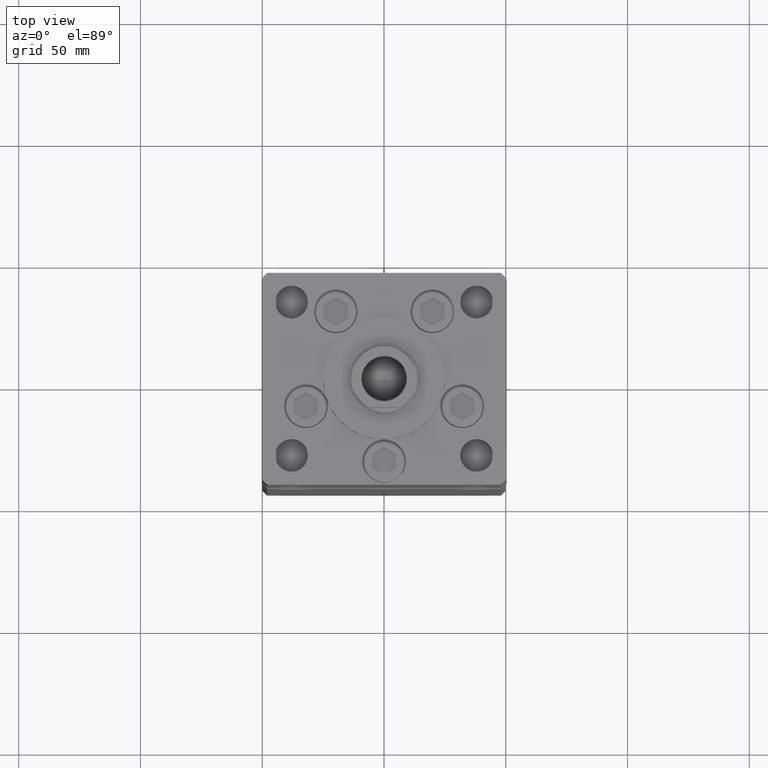
[diagram: clean part render]
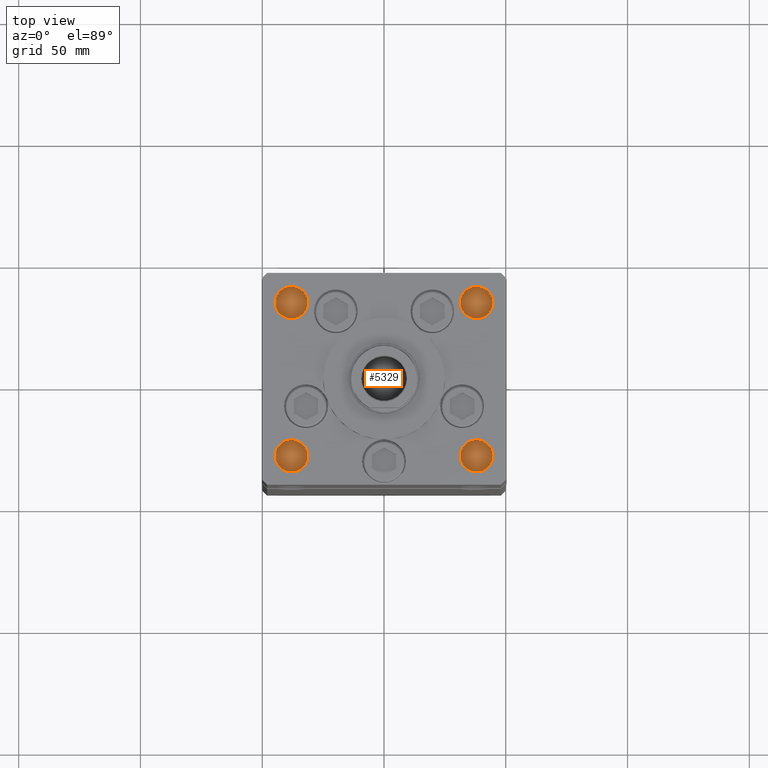
[diagram: same view with one face highlighted and labeled with its STEP entity id]
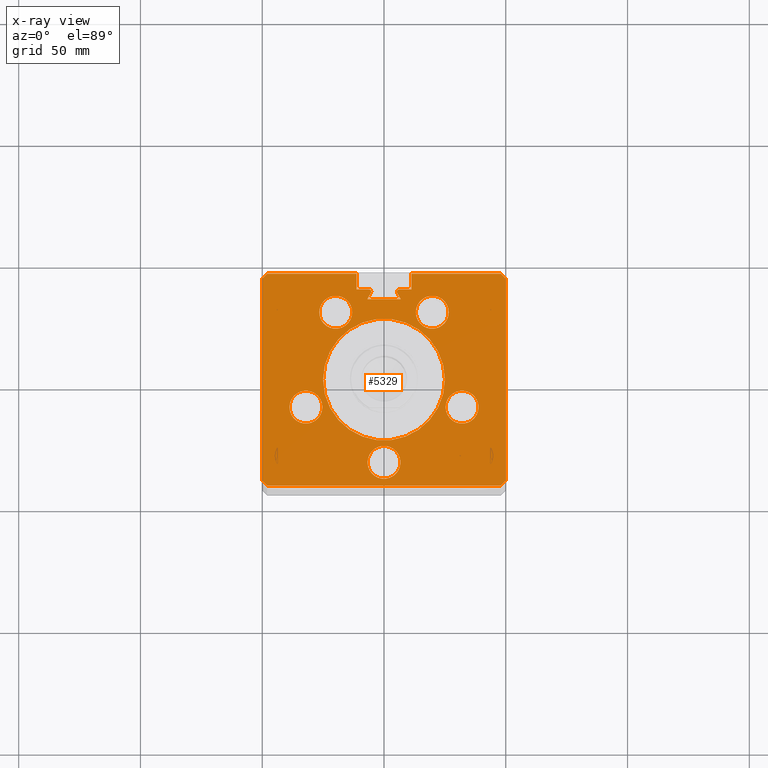
[diagram: x-ray of the same camera — body ghosted, the highlighted face saturated]
A machine part, top view. The second image highlights one B-rep face of the part: STEP entity #5329.
The next image is the same camera in x-ray: the body ghosted, the highlighted face saturated — about 0% of this face is hidden behind the body in this view.
In plain terms, the highlighted planar face has unit normal (0, 0, -1).
Its self-contained STEP definition (entity closure, byte-faithful):
#291 = VERTEX_POINT ( 'NONE', #20851 ) ;
#342 = DIRECTION ( 'NONE',  ( 1.000000000000000000, 0.000000000000000000, 0.000000000000000000 ) ) ;
#428 = EDGE_CURVE ( 'NONE', #291, #8487, #39063, .T. ) ;
#454 = VERTEX_POINT ( 'NONE', #19195 ) ;
#633 = CARTESIAN_POINT ( 'NONE',  ( 6.750000000000000888, -34.00000000000000000, 218.5000000000000000 ) ) ;
#902 = CARTESIAN_POINT ( 'NONE',  ( -11.24999999999999645, 43.50000000000000000, 218.5000000000000000 ) ) ;
#966 = VERTEX_POINT ( 'NONE', #20982 ) ;
#1570 = DIRECTION ( 'NONE',  ( 1.000000000000000000, 0.000000000000000000, 0.000000000000000000 ) ) ;
#2235 = VECTOR ( 'NONE', #13411, 1000.000000000000000 ) ;
#2805 = VERTEX_POINT ( 'NONE', #19994 ) ;
#3320 = EDGE_CURVE ( 'NONE', #42642, #2805, #43709, .T. ) ;
#3593 = CARTESIAN_POINT ( 'NONE',  ( -49.99999999999998579, -41.49999999999999289, 218.5000000000000000 ) ) ;
#3716 = DIRECTION ( 'NONE',  ( 1.000000000000000000, 0.000000000000000000, 0.000000000000000000 ) ) ;
#3862 = CARTESIAN_POINT ( 'NONE',  ( 11.24999999999999645, 0.000000000000000000, 218.5000000000000000 ) ) ;
#4068 = AXIS2_PLACEMENT_3D ( 'NONE', #9047, #28994, #48940 ) ;
#4332 = LINE ( 'NONE', #36359, #51676 ) ;
#4480 = EDGE_CURVE ( 'NONE', #38471, #26225, #52375, .T. ) ;
#4512 = CIRCLE ( 'NONE', #25137, 0.9333333333339999260 ) ;
#4908 = ORIENTED_EDGE ( 'NONE', *, *, #46651, .T. ) ;
#5265 = VECTOR ( 'NONE', #26250, 1000.000000000000000 ) ;
#5329 = ADVANCED_FACE ( 'NONE', ( #52981, #51913, #14999, #31443, #47880, #19306, #35738 ), #31709, .F. ) ;
#5461 = DIRECTION ( 'NONE',  ( 0.4999999999999987788, 0.8660254037844392627, 0.000000000000000000 ) ) ;
#5549 = CARTESIAN_POINT ( 'NONE',  ( -25.00000000000000000, 0.000000000000000000, 218.5000000000000000 ) ) ;
#5557 = CARTESIAN_POINT ( 'NONE',  ( 49.99999999999998579, -41.49999999999999289, 218.5000000000000000 ) ) ;
#5948 = CARTESIAN_POINT ( 'NONE',  ( 48.00000000000000711, 43.50000000000000000, 218.5000000000000000 ) ) ;
#5953 = ORIENTED_EDGE ( 'NONE', *, *, #16591, .T. ) ;
#6371 = VERTEX_POINT ( 'NONE', #37663 ) ;
#6743 = CARTESIAN_POINT ( 'NONE',  ( -11.24999999999999645, 43.50000000000000000, 218.5000000000000000 ) ) ;
#7151 = EDGE_CURVE ( 'NONE', #45030, #19356, #19712, .T. ) ;
#7207 = DIRECTION ( 'NONE',  ( -1.000000000000000000, 0.000000000000000000, -0.000000000000000000 ) ) ;
#7220 = LINE ( 'NONE', #32257, #20377 ) ;
#7297 = AXIS2_PLACEMENT_3D ( 'NONE', #39132, #47507, #23523 ) ;
#7368 = CIRCLE ( 'NONE', #41744, 6.749999999999999112 ) ;
#7436 = LINE ( 'NONE', #36233, #34458 ) ;
#7797 = DIRECTION ( 'NONE',  ( 0.000000000000000000, 0.000000000000000000, 1.000000000000000000 ) ) ;
#7835 = ORIENTED_EDGE ( 'NONE', *, *, #3320, .F. ) ;
#8004 = VERTEX_POINT ( 'NONE', #5557 ) ;
#8053 = CARTESIAN_POINT ( 'NONE',  ( 32.05550741379015278, -11.33333333333334103, 218.5000000000000000 ) ) ;
#8181 = DIRECTION ( 'NONE',  ( 0.000000000000000000, 0.000000000000000000, 1.000000000000000000 ) ) ;
#8487 = VERTEX_POINT ( 'NONE', #11267 ) ;
#8573 = DIRECTION ( 'NONE',  ( -0.000000000000000000, 0.000000000000000000, 1.000000000000000000 ) ) ;
#8672 = VERTEX_POINT ( 'NONE', #45700 ) ;
#8687 = DIRECTION ( 'NONE',  ( 1.000000000000000000, 0.000000000000000000, 0.000000000000000000 ) ) ;
#8827 = AXIS2_PLACEMENT_3D ( 'NONE', #53169, #39972, #23828 ) ;
#9047 = CARTESIAN_POINT ( 'NONE',  ( 0.000000000000000000, 0.000000000000000000, 218.5000000000000000 ) ) ;
#9190 = VECTOR ( 'NONE', #50788, 1000.000000000000114 ) ;
#9448 = VECTOR ( 'NONE', #32697, 1000.000000000000000 ) ;
#9803 = VERTEX_POINT ( 'NONE', #5948 ) ;
#9849 = VECTOR ( 'NONE', #15188, 1000.000000000000000 ) ;
#9875 = CARTESIAN_POINT ( 'NONE',  ( 32.05550741379015278, -11.33333333333334103, 218.5000000000000000 ) ) ;
#9954 = VERTEX_POINT ( 'NONE', #47689 ) ;
#10073 = ORIENTED_EDGE ( 'NONE', *, *, #43384, .T. ) ;
#10244 = ORIENTED_EDGE ( 'NONE', *, *, #19963, .F. ) ;
#10632 = ORIENTED_EDGE ( 'NONE', *, *, #12909, .T. ) ;
#10964 = CARTESIAN_POINT ( 'NONE',  ( 11.24999999999999645, 37.00000000000000000, 218.5000000000000000 ) ) ;
#11128 = CARTESIAN_POINT ( 'NONE',  ( -11.24999999999999645, 37.00000000000000000, 218.5000000000000000 ) ) ;
#11267 = CARTESIAN_POINT ( 'NONE',  ( -38.80550741379015278, -11.33333333333334458, 218.5000000000000000 ) ) ;
#11522 = CIRCLE ( 'NONE', #23684, 6.749999999999999112 ) ;
#11871 = DIRECTION ( 'NONE',  ( 1.000000000000000000, 0.000000000000000000, 0.000000000000000000 ) ) ;
#12081 = CARTESIAN_POINT ( 'NONE',  ( 0.000000000000000000, 0.000000000000000000, 218.5000000000000000 ) ) ;
#12460 = VERTEX_POINT ( 'NONE', #40167 ) ;
#12466 = DIRECTION ( 'NONE',  ( 1.000000000000000000, 0.000000000000000000, 0.000000000000000000 ) ) ;
#12589 = CARTESIAN_POINT ( 'NONE',  ( 48.00000000000000711, 43.50000000000000000, 218.5000000000000000 ) ) ;
#12599 = ORIENTED_EDGE ( 'NONE', *, *, #45687, .F. ) ;
#12909 = EDGE_CURVE ( 'NONE', #33254, #6371, #41022, .T. ) ;
#13215 = ORIENTED_EDGE ( 'NONE', *, *, #41537, .T. ) ;
#13261 = VECTOR ( 'NONE', #45188, 1000.000000000000000 ) ;
#13330 = ORIENTED_EDGE ( 'NONE', *, *, #32009, .T. ) ;
#13411 = DIRECTION ( 'NONE',  ( 0.000000000000000000, 1.000000000000000000, 0.000000000000000000 ) ) ;
#13582 = ORIENTED_EDGE ( 'NONE', *, *, #19610, .F. ) ;
#14165 = DIRECTION ( 'NONE',  ( 1.000000000000000000, 0.000000000000000000, 0.000000000000000000 ) ) ;
#14439 = DIRECTION ( 'NONE',  ( 0.000000000000000000, 0.000000000000000000, -1.000000000000000000 ) ) ;
#14445 = VERTEX_POINT ( 'NONE', #32846 ) ;
#14462 = VERTEX_POINT ( 'NONE', #36609 ) ;
#14656 = EDGE_CURVE ( 'NONE', #46077, #9954, #7436, .T. ) ;
#14670 = CARTESIAN_POINT ( 'NONE',  ( -11.24999999999999645, 0.000000000000000000, 218.5000000000000000 ) ) ;
#14891 = EDGE_CURVE ( 'NONE', #42642, #31965, #4332, .T. ) ;
#14982 = CARTESIAN_POINT ( 'NONE',  ( -47.99999999999998579, -43.50000000000000000, 218.5000000000000000 ) ) ;
#14999 = FACE_BOUND ( 'NONE', #17182, .T. ) ;
#15188 = DIRECTION ( 'NONE',  ( -3.344045254895050973E-16, -1.000000000000000000, 0.000000000000000000 ) ) ;
#15252 = ORIENTED_EDGE ( 'NONE', *, *, #46487, .F. ) ;
#15790 = VERTEX_POINT ( 'NONE', #44781 ) ;
#16043 = ORIENTED_EDGE ( 'NONE', *, *, #28735, .F. ) ;
#16563 = ORIENTED_EDGE ( 'NONE', *, *, #42063, .T. ) ;
#16591 = EDGE_CURVE ( 'NONE', #36542, #15790, #31084, .T. ) ;
#16773 = DIRECTION ( 'NONE',  ( 1.000000000000000000, 0.000000000000000000, 0.000000000000000000 ) ) ;
#16880 = LINE ( 'NONE', #12589, #13261 ) ;
#17182 = EDGE_LOOP ( 'NONE', ( #10244, #16043 ) ) ;
#17368 = EDGE_LOOP ( 'NONE', ( #17516, #10073, #43375, #5953, #13215, #48511, #18760, #17408, #46185, #20804, #12599, #13330, #10632, #47434, #4908, #49435, #16563, #13582, #7835 ) ) ;
#17375 = CIRCLE ( 'NONE', #33735, 6.749999999999999112 ) ;
#17408 = ORIENTED_EDGE ( 'NONE', *, *, #20559, .F. ) ;
#17516 = ORIENTED_EDGE ( 'NONE', *, *, #14891, .T. ) ;
#17532 = EDGE_LOOP ( 'NONE', ( #22672, #27423 ) ) ;
#17631 = LINE ( 'NONE', #25749, #9190 ) ;
#17672 = DIRECTION ( 'NONE',  ( 3.344045254895050973E-16, -1.000000000000000000, 0.000000000000000000 ) ) ;
#18730 = EDGE_CURVE ( 'NONE', #454, #6371, #4512, .T. ) ;
#18760 = ORIENTED_EDGE ( 'NONE', *, *, #47404, .T. ) ;
#18918 = CARTESIAN_POINT ( 'NONE',  ( 38.80550741379015278, -11.33333333333334103, 218.5000000000000000 ) ) ;
#18952 = CARTESIAN_POINT ( 'NONE',  ( 19.82068048781374259, 27.62500000000000000, 218.5000000000000000 ) ) ;
#19195 = CARTESIAN_POINT ( 'NONE',  ( 5.375042956467946276, 35.59999999999899245, 218.5000000000000000 ) ) ;
#19306 = FACE_OUTER_BOUND ( 'NONE', #17368, .T. ) ;
#19356 = VERTEX_POINT ( 'NONE', #29247 ) ;
#19610 = EDGE_CURVE ( 'NONE', #2805, #52043, #31175, .T. ) ;
#19712 = CIRCLE ( 'NONE', #40363, 6.749999999999999112 ) ;
#19963 = EDGE_CURVE ( 'NONE', #52357, #31110, #17375, .T. ) ;
#19994 = CARTESIAN_POINT ( 'NONE',  ( -5.249999999999995559, 36.06666666666599497, 218.5000000000000000 ) ) ;
#20228 = CIRCLE ( 'NONE', #50352, 6.749999999999999112 ) ;
#20377 = VECTOR ( 'NONE', #51924, 1000.000000000000000 ) ;
#20559 = EDGE_CURVE ( 'NONE', #8004, #8672, #34048, .T. ) ;
#20804 = ORIENTED_EDGE ( 'NONE', *, *, #39352, .F. ) ;
#20851 = CARTESIAN_POINT ( 'NONE',  ( -25.30550741379015278, -11.33333333333334458, 218.5000000000000000 ) ) ;
#20982 = CARTESIAN_POINT ( 'NONE',  ( 50.00000000000001421, 41.49999999999999289, 218.5000000000000000 ) ) ;
#21732 = CARTESIAN_POINT ( 'NONE',  ( -50.00000000000001421, 41.49999999999999289, 218.5000000000000000 ) ) ;
#22002 = LINE ( 'NONE', #21732, #24545 ) ;
#22672 = ORIENTED_EDGE ( 'NONE', *, *, #428, .F. ) ;
#23128 = CARTESIAN_POINT ( 'NONE',  ( 25.00000000000000000, 3.061616997868383043E-15, 218.5000000000000000 ) ) ;
#23523 = DIRECTION ( 'NONE',  ( 1.000000000000000000, 0.000000000000000000, 0.000000000000000000 ) ) ;
#23538 = ORIENTED_EDGE ( 'NONE', *, *, #41891, .F. ) ;
#23598 = VECTOR ( 'NONE', #53219, 1000.000000000000114 ) ;
#23684 = AXIS2_PLACEMENT_3D ( 'NONE', #9875, #34628, #14165 ) ;
#23823 = LINE ( 'NONE', #52896, #9849 ) ;
#23828 = DIRECTION ( 'NONE',  ( 1.000000000000000000, 0.000000000000000000, 0.000000000000000000 ) ) ;
#24187 = EDGE_CURVE ( 'NONE', #36542, #12460, #27217, .T. ) ;
#24210 = EDGE_LOOP ( 'NONE', ( #52618, #42478 ) ) ;
#24311 = DIRECTION ( 'NONE',  ( -0.000000000000000000, -1.000000000000000000, 0.000000000000000000 ) ) ;
#24545 = VECTOR ( 'NONE', #17672, 1000.000000000000000 ) ;
#24568 = CARTESIAN_POINT ( 'NONE',  ( 2.081899558550500280E-15, -34.00000000000000000, 218.5000000000000000 ) ) ;
#24966 = CARTESIAN_POINT ( 'NONE',  ( -32.05550741379015278, -11.33333333333334458, 218.5000000000000000 ) ) ;
#25137 = AXIS2_PLACEMENT_3D ( 'NONE', #40671, #28578, #11871 ) ;
#25174 = VECTOR ( 'NONE', #25979, 1000.000000000000114 ) ;
#25379 = CIRCLE ( 'NONE', #50339, 6.749999999999999112 ) ;
#25448 = CARTESIAN_POINT ( 'NONE',  ( 49.99999999999998579, -41.49999999999999289, 218.5000000000000000 ) ) ;
#25487 = DIRECTION ( 'NONE',  ( 0.000000000000000000, 0.000000000000000000, 1.000000000000000000 ) ) ;
#25749 = CARTESIAN_POINT ( 'NONE',  ( 19.44653440471351757, 11.22746187336663404, 218.5000000000000000 ) ) ;
#25979 = DIRECTION ( 'NONE',  ( -0.7071067811865474617, -0.7071067811865474617, 0.000000000000000000 ) ) ;
#26113 = CARTESIAN_POINT ( 'NONE',  ( 6.876153656360465050, 32.99999999999986500, 218.5000000000000000 ) ) ;
#26225 = VERTEX_POINT ( 'NONE', #5549 ) ;
#26250 = DIRECTION ( 'NONE',  ( -0.7071067811865487940, -0.7071067811865463515, 0.000000000000000000 ) ) ;
#26791 = DIRECTION ( 'NONE',  ( 0.000000000000000000, 0.000000000000000000, 1.000000000000000000 ) ) ;
#27124 = AXIS2_PLACEMENT_3D ( 'NONE', #31618, #26791, #31897 ) ;
#27217 = LINE ( 'NONE', #6743, #29592 ) ;
#27361 = EDGE_LOOP ( 'NONE', ( #48496, #31517 ) ) ;
#27423 = ORIENTED_EDGE ( 'NONE', *, *, #35037, .F. ) ;
#27661 = LINE ( 'NONE', #40800, #23598 ) ;
#28012 = DIRECTION ( 'NONE',  ( 1.000000000000000000, 0.000000000000000000, 0.000000000000000000 ) ) ;
#28295 = DIRECTION ( 'NONE',  ( -1.000000000000000000, 0.000000000000000000, 0.000000000000000000 ) ) ;
#28523 = DIRECTION ( 'NONE',  ( 1.000000000000000000, 0.000000000000000000, 0.000000000000000000 ) ) ;
#28578 = DIRECTION ( 'NONE',  ( 0.000000000000000000, 0.000000000000000000, -1.000000000000000000 ) ) ;
#28735 = EDGE_CURVE ( 'NONE', #31110, #52357, #11522, .T. ) ;
#28994 = DIRECTION ( 'NONE',  ( -0.000000000000000000, 0.000000000000000000, 1.000000000000000000 ) ) ;
#29247 = CARTESIAN_POINT ( 'NONE',  ( -6.749999999999997335, -34.00000000000000000, 218.5000000000000000 ) ) ;
#29506 = EDGE_CURVE ( 'NONE', #37961, #49287, #27661, .T. ) ;
#29592 = VECTOR ( 'NONE', #28012, 1000.000000000000000 ) ;
#29736 = AXIS2_PLACEMENT_3D ( 'NONE', #37784, #33221, #16773 ) ;
#30624 = EDGE_LOOP ( 'NONE', ( #49186, #23538 ) ) ;
#31084 = LINE ( 'NONE', #47521, #5265 ) ;
#31110 = VERTEX_POINT ( 'NONE', #51523 ) ;
#31175 = CIRCLE ( 'NONE', #8827, 0.9333333333339999260 ) ;
#31443 = FACE_BOUND ( 'NONE', #30624, .T. ) ;
#31517 = ORIENTED_EDGE ( 'NONE', *, *, #41844, .F. ) ;
#31618 = CARTESIAN_POINT ( 'NONE',  ( -19.82068048781374259, 27.62499999999999645, 218.5000000000000000 ) ) ;
#31709 = PLANE ( 'NONE',  #53215 ) ;
#31897 = DIRECTION ( 'NONE',  ( 1.000000000000000000, 0.000000000000000000, 0.000000000000000000 ) ) ;
#31965 = VERTEX_POINT ( 'NONE', #11128 ) ;
#31980 = CARTESIAN_POINT ( 'NONE',  ( -19.82068048781374259, 27.62499999999999645, 218.5000000000000000 ) ) ;
#32009 = EDGE_CURVE ( 'NONE', #36398, #33254, #32392, .T. ) ;
#32201 = DIRECTION ( 'NONE',  ( -1.000000000000000000, 0.000000000000000000, 0.000000000000000000 ) ) ;
#32257 = CARTESIAN_POINT ( 'NONE',  ( -47.99999999999998579, -43.50000000000000000, 218.5000000000000000 ) ) ;
#32277 = VECTOR ( 'NONE', #5461, 1000.000000000000114 ) ;
#32356 = AXIS2_PLACEMENT_3D ( 'NONE', #24966, #25487, #37074 ) ;
#32392 = LINE ( 'NONE', #3862, #52849 ) ;
#32527 = AXIS2_PLACEMENT_3D ( 'NONE', #34905, #14439, #1570 ) ;
#32697 = DIRECTION ( 'NONE',  ( -1.000000000000000000, 0.000000000000000000, 0.000000000000000000 ) ) ;
#32846 = CARTESIAN_POINT ( 'NONE',  ( -13.07068048781374259, 27.62499999999999645, 218.5000000000000000 ) ) ;
#33221 = DIRECTION ( 'NONE',  ( 0.000000000000000000, 0.000000000000000000, 1.000000000000000000 ) ) ;
#33254 = VERTEX_POINT ( 'NONE', #10964 ) ;
#33360 = ORIENTED_EDGE ( 'NONE', *, *, #4480, .F. ) ;
#33735 = AXIS2_PLACEMENT_3D ( 'NONE', #8053, #7797, #40626 ) ;
#33943 = EDGE_CURVE ( 'NONE', #14445, #14462, #20228, .T. ) ;
#34048 = LINE ( 'NONE', #25448, #25174 ) ;
#34065 = CARTESIAN_POINT ( 'NONE',  ( -6.183333333333996151, 37.00000000000000000, 218.5000000000000000 ) ) ;
#34458 = VECTOR ( 'NONE', #32201, 1000.000000000000000 ) ;
#34628 = DIRECTION ( 'NONE',  ( 0.000000000000000000, 0.000000000000000000, 1.000000000000000000 ) ) ;
#34905 = CARTESIAN_POINT ( 'NONE',  ( -6.183333333333996151, 36.06666666666599497, 218.5000000000000000 ) ) ;
#35037 = EDGE_CURVE ( 'NONE', #8487, #291, #35775, .T. ) ;
#35377 = DIRECTION ( 'NONE',  ( 0.000000000000000000, 0.000000000000000000, 1.000000000000000000 ) ) ;
#35738 = FACE_BOUND ( 'NONE', #52390, .T. ) ;
#35775 = CIRCLE ( 'NONE', #32356, 6.749999999999999112 ) ;
#36233 = CARTESIAN_POINT ( 'NONE',  ( 0.000000000000000000, 32.99999999999986500, 218.5000000000000000 ) ) ;
#36359 = CARTESIAN_POINT ( 'NONE',  ( 0.000000000000000000, 37.00000000000000000, 218.5000000000000000 ) ) ;
#36398 = VERTEX_POINT ( 'NONE', #42803 ) ;
#36542 = VERTEX_POINT ( 'NONE', #37123 ) ;
#36609 = CARTESIAN_POINT ( 'NONE',  ( -26.57068048781373903, 27.62499999999999645, 218.5000000000000000 ) ) ;
#37074 = DIRECTION ( 'NONE',  ( 1.000000000000000000, 0.000000000000000000, 0.000000000000000000 ) ) ;
#37123 = CARTESIAN_POINT ( 'NONE',  ( -48.00000000000000711, 43.50000000000000000, 218.5000000000000000 ) ) ;
#37518 = CARTESIAN_POINT ( 'NONE',  ( 0.000000000000000000, 37.00000000000000000, 218.5000000000000000 ) ) ;
#37651 = LINE ( 'NONE', #14670, #2235 ) ;
#37663 = CARTESIAN_POINT ( 'NONE',  ( 6.183333333333996151, 37.00000000000000000, 218.5000000000000000 ) ) ;
#37784 = CARTESIAN_POINT ( 'NONE',  ( 19.82068048781374259, 27.62500000000000000, 218.5000000000000000 ) ) ;
#37961 = VERTEX_POINT ( 'NONE', #3593 ) ;
#38471 = VERTEX_POINT ( 'NONE', #23128 ) ;
#38476 = VERTEX_POINT ( 'NONE', #39551 ) ;
#39063 = CIRCLE ( 'NONE', #7297, 6.749999999999999112 ) ;
#39132 = CARTESIAN_POINT ( 'NONE',  ( -32.05550741379015278, -11.33333333333334458, 218.5000000000000000 ) ) ;
#39352 = EDGE_CURVE ( 'NONE', #9803, #966, #16880, .T. ) ;
#39551 = CARTESIAN_POINT ( 'NONE',  ( 26.57068048781373903, 27.62500000000000000, 218.5000000000000000 ) ) ;
#39972 = DIRECTION ( 'NONE',  ( 0.000000000000000000, 0.000000000000000000, -1.000000000000000000 ) ) ;
#40167 = CARTESIAN_POINT ( 'NONE',  ( -11.24999999999999645, 43.50000000000000000, 218.5000000000000000 ) ) ;
#40363 = AXIS2_PLACEMENT_3D ( 'NONE', #24568, #48093, #342 ) ;
#40626 = DIRECTION ( 'NONE',  ( 1.000000000000000000, 0.000000000000000000, 0.000000000000000000 ) ) ;
#40671 = CARTESIAN_POINT ( 'NONE',  ( 6.183333333333996151, 36.06666666666599497, 218.5000000000000000 ) ) ;
#40800 = CARTESIAN_POINT ( 'NONE',  ( -49.99999999999998579, -41.49999999999999289, 218.5000000000000000 ) ) ;
#40874 = EDGE_CURVE ( 'NONE', #966, #8004, #23823, .T. ) ;
#40973 = VECTOR ( 'NONE', #8687, 1000.000000000000000 ) ;
#41022 = LINE ( 'NONE', #37518, #9448 ) ;
#41519 = LINE ( 'NONE', #902, #40973 ) ;
#41537 = EDGE_CURVE ( 'NONE', #15790, #37961, #22002, .T. ) ;
#41559 = CARTESIAN_POINT ( 'NONE',  ( -5.375042956467946276, 35.59999999999899245, 218.5000000000000000 ) ) ;
#41744 = AXIS2_PLACEMENT_3D ( 'NONE', #48858, #8181, #45335 ) ;
#41844 = EDGE_CURVE ( 'NONE', #14462, #14445, #52922, .T. ) ;
#41891 = EDGE_CURVE ( 'NONE', #48501, #38476, #25379, .T. ) ;
#42063 = EDGE_CURVE ( 'NONE', #9954, #52043, #42608, .T. ) ;
#42478 = ORIENTED_EDGE ( 'NONE', *, *, #42752, .F. ) ;
#42608 = LINE ( 'NONE', #50962, #32277 ) ;
#42642 = VERTEX_POINT ( 'NONE', #34065 ) ;
#42752 = EDGE_CURVE ( 'NONE', #19356, #45030, #7368, .T. ) ;
#42803 = CARTESIAN_POINT ( 'NONE',  ( 11.24999999999998934, 43.50000000000000000, 218.5000000000000000 ) ) ;
#43240 = CARTESIAN_POINT ( 'NONE',  ( 13.07068048781374081, 27.62500000000000000, 218.5000000000000000 ) ) ;
#43375 = ORIENTED_EDGE ( 'NONE', *, *, #24187, .F. ) ;
#43384 = EDGE_CURVE ( 'NONE', #31965, #12460, #37651, .T. ) ;
#43626 = EDGE_CURVE ( 'NONE', #38476, #48501, #46058, .T. ) ;
#43709 = CIRCLE ( 'NONE', #32527, 0.9333333333339999260 ) ;
#44089 = DIRECTION ( 'NONE',  ( 0.000000000000000000, 0.000000000000000000, -1.000000000000000000 ) ) ;
#44623 = DIRECTION ( 'NONE',  ( 0.000000000000000000, 0.000000000000000000, 1.000000000000000000 ) ) ;
#44781 = CARTESIAN_POINT ( 'NONE',  ( -50.00000000000001421, 41.49999999999999289, 218.5000000000000000 ) ) ;
#45030 = VERTEX_POINT ( 'NONE', #633 ) ;
#45188 = DIRECTION ( 'NONE',  ( 0.7071067811865487940, -0.7071067811865463515, 0.000000000000000000 ) ) ;
#45335 = DIRECTION ( 'NONE',  ( 1.000000000000000000, 0.000000000000000000, 0.000000000000000000 ) ) ;
#45687 = EDGE_CURVE ( 'NONE', #36398, #9803, #41519, .T. ) ;
#45700 = CARTESIAN_POINT ( 'NONE',  ( 47.99999999999998579, -43.50000000000000000, 218.5000000000000000 ) ) ;
#46058 = CIRCLE ( 'NONE', #29736, 6.749999999999999112 ) ;
#46077 = VERTEX_POINT ( 'NONE', #26113 ) ;
#46185 = ORIENTED_EDGE ( 'NONE', *, *, #40874, .F. ) ;
#46487 = EDGE_CURVE ( 'NONE', #26225, #38471, #52230, .T. ) ;
#46651 = EDGE_CURVE ( 'NONE', #454, #46077, #17631, .T. ) ;
#47404 = EDGE_CURVE ( 'NONE', #49287, #8672, #7220, .T. ) ;
#47434 = ORIENTED_EDGE ( 'NONE', *, *, #18730, .F. ) ;
#47507 = DIRECTION ( 'NONE',  ( 0.000000000000000000, 0.000000000000000000, 1.000000000000000000 ) ) ;
#47521 = CARTESIAN_POINT ( 'NONE',  ( -48.00000000000000711, 43.50000000000000000, 218.5000000000000000 ) ) ;
#47689 = CARTESIAN_POINT ( 'NONE',  ( -6.876153656360465050, 32.99999999999986500, 218.5000000000000000 ) ) ;
#47880 = FACE_BOUND ( 'NONE', #27361, .T. ) ;
#48093 = DIRECTION ( 'NONE',  ( 0.000000000000000000, 0.000000000000000000, 1.000000000000000000 ) ) ;
#48154 = CARTESIAN_POINT ( 'NONE',  ( 0.000000000000000000, 0.000000000000000000, 218.5000000000000000 ) ) ;
#48496 = ORIENTED_EDGE ( 'NONE', *, *, #33943, .F. ) ;
#48501 = VERTEX_POINT ( 'NONE', #43240 ) ;
#48511 = ORIENTED_EDGE ( 'NONE', *, *, #29506, .T. ) ;
#48858 = CARTESIAN_POINT ( 'NONE',  ( 2.081899558550500280E-15, -34.00000000000000000, 218.5000000000000000 ) ) ;
#48911 = AXIS2_PLACEMENT_3D ( 'NONE', #12081, #8573, #28523 ) ;
#48940 = DIRECTION ( 'NONE',  ( 1.000000000000000000, 0.000000000000000000, 0.000000000000000000 ) ) ;
#49186 = ORIENTED_EDGE ( 'NONE', *, *, #43626, .F. ) ;
#49287 = VERTEX_POINT ( 'NONE', #14982 ) ;
#49435 = ORIENTED_EDGE ( 'NONE', *, *, #14656, .T. ) ;
#50339 = AXIS2_PLACEMENT_3D ( 'NONE', #18952, #35377, #12466 ) ;
#50352 = AXIS2_PLACEMENT_3D ( 'NONE', #31980, #44623, #3716 ) ;
#50788 = DIRECTION ( 'NONE',  ( 0.4999999999999987788, -0.8660254037844392627, 0.000000000000000000 ) ) ;
#50962 = CARTESIAN_POINT ( 'NONE',  ( -19.44653440471351757, 11.22746187336663404, 218.5000000000000000 ) ) ;
#51523 = CARTESIAN_POINT ( 'NONE',  ( 25.30550741379015278, -11.33333333333334103, 218.5000000000000000 ) ) ;
#51676 = VECTOR ( 'NONE', #28295, 1000.000000000000000 ) ;
#51913 = FACE_BOUND ( 'NONE', #24210, .T. ) ;
#51924 = DIRECTION ( 'NONE',  ( 1.000000000000000000, 0.000000000000000000, 0.000000000000000000 ) ) ;
#52043 = VERTEX_POINT ( 'NONE', #41559 ) ;
#52230 = CIRCLE ( 'NONE', #4068, 25.00000000000000000 ) ;
#52357 = VERTEX_POINT ( 'NONE', #18918 ) ;
#52375 = CIRCLE ( 'NONE', #48911, 25.00000000000000000 ) ;
#52390 = EDGE_LOOP ( 'NONE', ( #15252, #33360 ) ) ;
#52618 = ORIENTED_EDGE ( 'NONE', *, *, #7151, .F. ) ;
#52849 = VECTOR ( 'NONE', #24311, 1000.000000000000000 ) ;
#52896 = CARTESIAN_POINT ( 'NONE',  ( 50.00000000000001421, 41.49999999999999289, 218.5000000000000000 ) ) ;
#52922 = CIRCLE ( 'NONE', #27124, 6.749999999999999112 ) ;
#52981 = FACE_BOUND ( 'NONE', #17532, .T. ) ;
#53169 = CARTESIAN_POINT ( 'NONE',  ( -6.183333333333996151, 36.06666666666599497, 218.5000000000000000 ) ) ;
#53215 = AXIS2_PLACEMENT_3D ( 'NONE', #48154, #44089, #7207 ) ;
#53219 = DIRECTION ( 'NONE',  ( 0.7071067811865474617, -0.7071067811865474617, 0.000000000000000000 ) ) ;